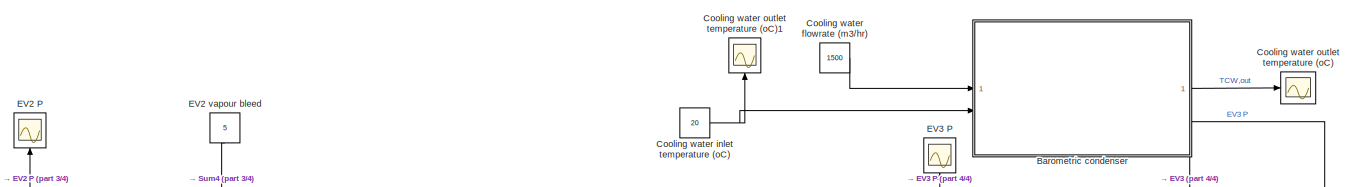
[diagram: root canvas - part 1/4, top right region]
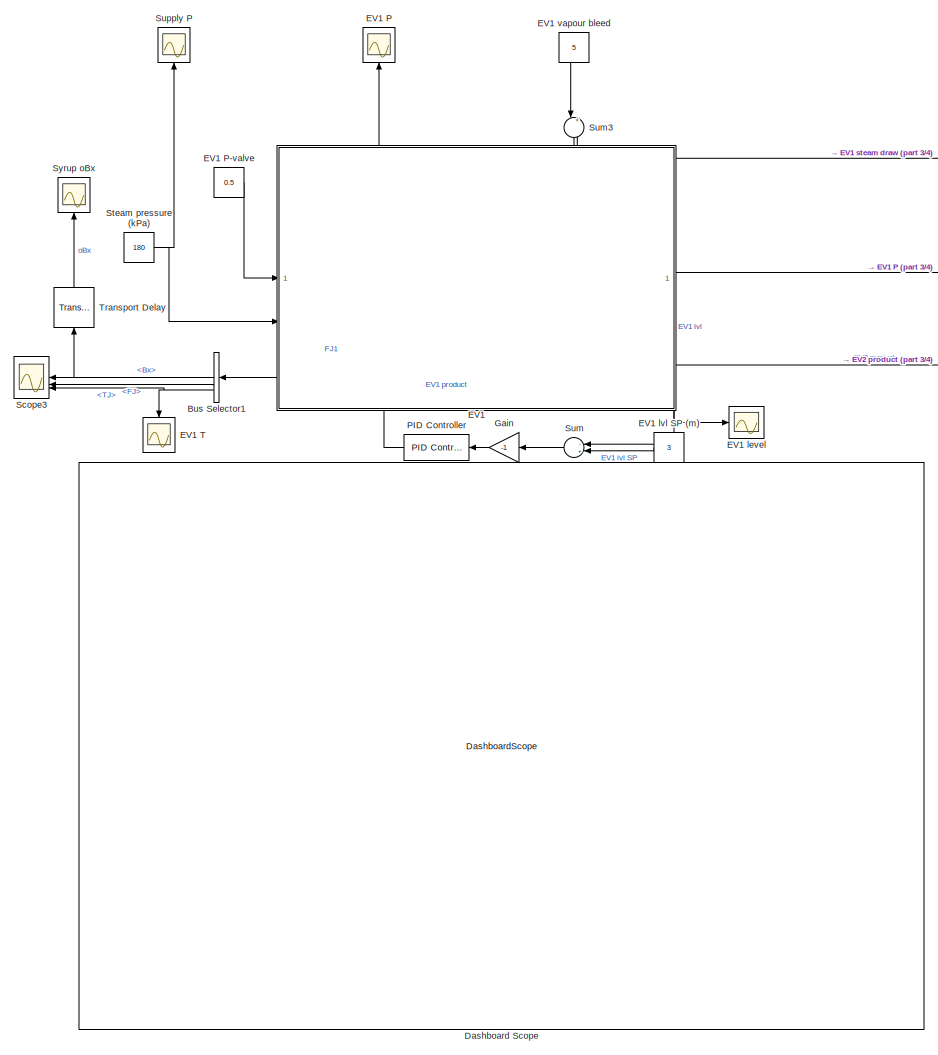
[diagram: root canvas - part 2/4, left side, full height]
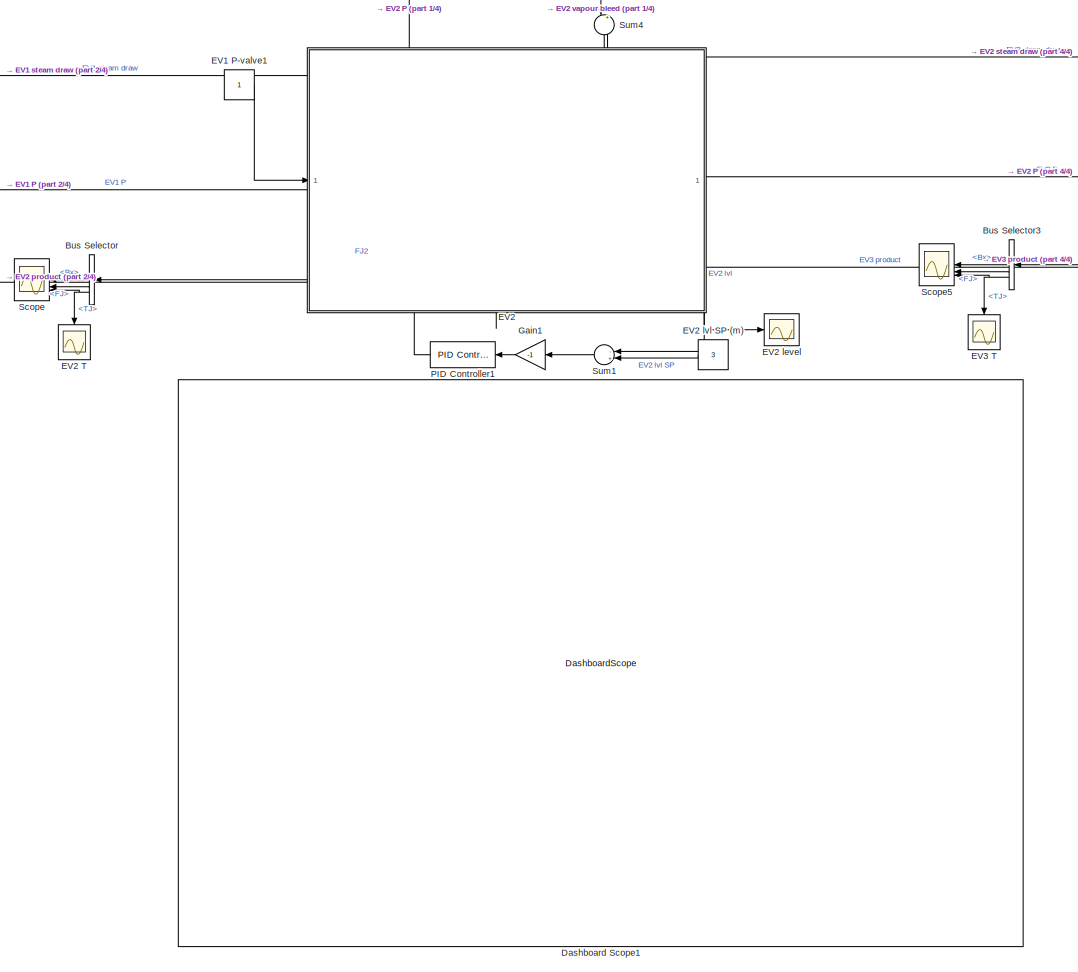
[diagram: root canvas - part 3/4, center side, full height]
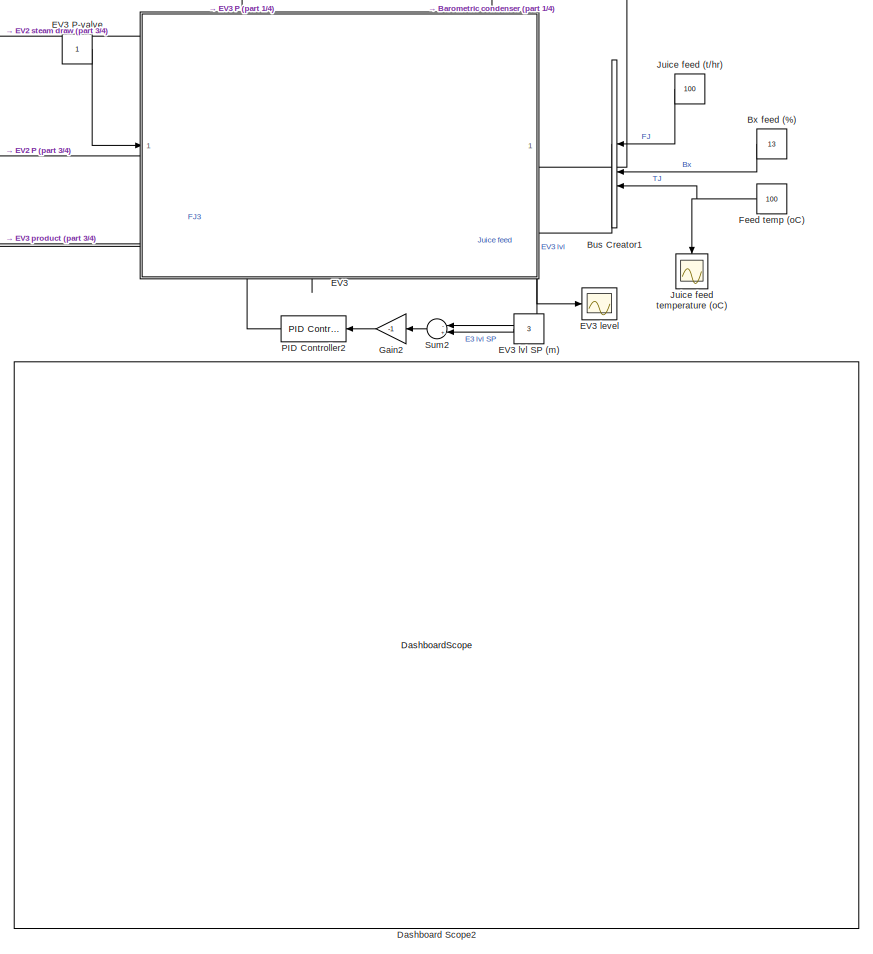
[diagram: root canvas - part 4/4, right side, full height]
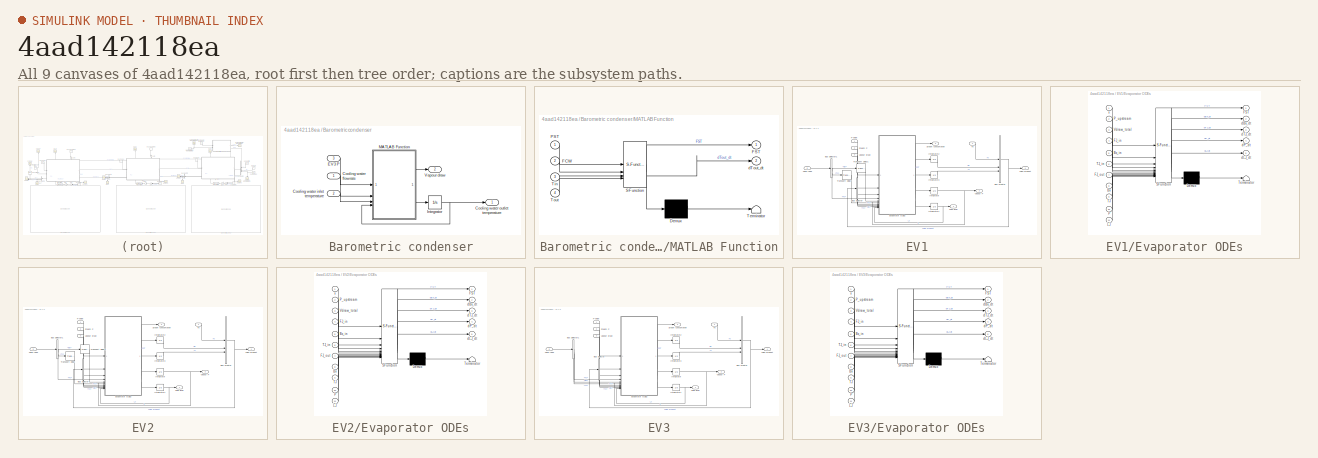
[diagram: thumbnail index - all 9 canvases of the model, root first then tree order]
MODEL slx_4aad142118ea
KIND model
CONFIG AbsTol = auto
CONFIG EnableMultiTasking = off
CONFIG FixedStep = auto
CONFIG MaxStep = 0.05
CONFIG MinStep = auto
CONFIG RelTol = 1e-3
CONFIG SampleTimeConstraint = Unconstrained
CONFIG SolverName = VariableStepAuto
CONFIG StartTime = 0.0
CONFIG StopTime = 50
BLOCK [SubSystem] Barometric condenser
  PortSchema = {"entries":[{"content":{"sides":[{"content":{"connectorIds":["In1","In2"]},"type":"ConnectorPlacement.EquallySpacedRectSide","uuid":"e5056713-d8d2-44cb-a01c-60287b02fa20"},{"content":{"connectorIds":["Out1"],"side":"RIGHT"},"type":"ConnectorPlacement.EquallySpacedRectSide","uuid":"75a49828-ba17-4d10-97f5-6b462429e837"},{"content":{"side":"TOP"},"type":"ConnectorPlacement.EquallySpacedRectSide","uu...<+384ch>
BLOCK [Inport] Barometric condenser/Cooling water flowrate
BLOCK [Inport] Barometric condenser/Cooling water inlet temperature
  Port = 2
BLOCK [Outport] Barometric condenser/Cooling water outlet temperature
BLOCK [Inport] Barometric condenser/EV3 P
  Port = 3
BLOCK [Integrator] Barometric condenser/Integrator
  InitialCondition = 27.85
BLOCK [SubSystem] Barometric condenser/MATLAB Function
  ErrorFcn = Stateflow.Translate.translate
  PermitHierarchicalResolution = ExplicitOnly
  SFBlockType = MATLAB Function
  TreatAsAtomicUnit = on
BLOCK [Demux] Barometric condenser/MATLAB Function/ Demux 
  Outputs = 1
BLOCK [S-Function] Barometric condenser/MATLAB Function/ SFunction 
  EnableBusSupport = on
  FunctionName = sf_sfun
  PortCounts = [4 3]
  SFcnIsStateOwnerBlock = off
  SFunctionDeploymentMode = off
  Tag = Stateflow S-Function 3
BLOCK [Terminator] Barometric condenser/MATLAB Function/ Terminator 
BLOCK [Inport] Barometric condenser/MATLAB Function/FCW
  Port = 2
BLOCK [Outport] Barometric condenser/MATLAB Function/FST
BLOCK [Inport] Barometric condenser/MATLAB Function/PST
BLOCK [Inport] Barometric condenser/MATLAB Function/Tin
  Port = 3
BLOCK [Inport] Barometric condenser/MATLAB Function/Tout
  Port = 4
BLOCK [Outport] Barometric condenser/MATLAB Function/dTout_dt
  Port = 2
BLOCK [Outport] Barometric condenser/Vapour draw
  Port = 2
BLOCK [BusCreator] Bus Creator1
  DisplayOption = bar
  InheritFromInputs = on
  Inputs = 3
BLOCK [BusSelector] Bus Selector
  OutputSignals = Bx,FJ,TJ
BLOCK [BusSelector] Bus Selector1
  OutputSignals = Bx,FJ,TJ
BLOCK [BusSelector] Bus Selector3
  OutputSignals = Bx,FJ,TJ
BLOCK [Constant] Bx feed (%)
  Value = 13
BLOCK [Constant] Cooling water flowrate (m3//hr)
  Value = 1500
BLOCK [Constant] Cooling water inlet temperature (oC)
  Value = 20
BLOCK [Scope] Cooling water outlet temperature (oC)
  Floating = off
  NumInputPorts = 1
  ScopeSpecificationString = Simulink.scopes.TimeScopeBlockCfg('CurrentConfiguration', extmgr.ConfigurationSet(extmgr.Configuration('Core','General UI',true,'FigureColor',[1 1 1]),extmgr.Configuration('Core','Source UI',true),extmgr.Configuration('Sources','WiredSimulink',true,'SampleTime','1/360'),extmgr.Configuration('Visuals','Time Domain',true,'SerializedDisplays',{struct('MinYLimReal','-1.00000','MaxYLimReal','1.00000','...<+1712ch>
BLOCK [Scope] Cooling water outlet temperature (oC)1
  Floating = off
  NameLocation = left
  NumInputPorts = 1
  ScopeSpecificationString = Simulink.scopes.TimeScopeBlockCfg('CurrentConfiguration', extmgr.ConfigurationSet(extmgr.Configuration('Core','General UI',true,'FigureColor',[1 1 1]),extmgr.Configuration('Core','Source UI',true),extmgr.Configuration('Sources','WiredSimulink',true,'SampleTime','1/360','DataLoggingVariableName','ScopeData10'),extmgr.Configuration('Visuals','Time Domain',true,'SerializedDisplays',{struct('MinYLimRe...<+1752ch>
BLOCK [DashboardScope] Dashboard Scope
BLOCK [DashboardScope] Dashboard Scope1
BLOCK [DashboardScope] Dashboard Scope2
BLOCK [SubSystem] EV1
  PortSchema = {"entries":[{"content":{"sides":[{"content":{"connectorIds":["In1","In2","Out3","Out4"]},"type":"ConnectorPlacement.EquallySpacedRectSide","uuid":"23f23739-dcb1-4c27-bdfa-9a4fab3adfb4"},{"content":{"connectorIds":["In5"],"side":"RIGHT"},"type":"ConnectorPlacement.EquallySpacedRectSide","uuid":"36d72309-34f0-453c-bd76-e3ebc7b1c9b0"},{"content":{"connectorIds":["Out2","In3"],"side":"TOP"},"type":"Co...<+427ch>  <repeated x3 — deduplicated; at blocks: EV1, EV2, EV3>
BLOCK [Scope] EV1 P
  Floating = off
  NameLocation = left
  NumInputPorts = 1
  ScopeSpecificationString = Simulink.scopes.TimeScopeBlockCfg('CurrentConfiguration', extmgr.ConfigurationSet(extmgr.Configuration('Core','General UI',true,'FigureColor',[1 1 1]),extmgr.Configuration('Core','Source UI',true),extmgr.Configuration('Sources','WiredSimulink',true,'SampleTime','1/360','DataLoggingVariableName','ScopeData5'),extmgr.Configuration('Visuals','Time Domain',true,'SerializedDisplays',{struct('MinYLimRea...<+1751ch>
BLOCK [Constant] EV1 P-valve
  Value = 0.5
BLOCK [Constant] EV1 P-valve1
BLOCK [Scope] EV1 T
  Floating = off
  NameLocation = right
  NumInputPorts = 1
  ScopeSpecificationString = Simulink.scopes.TimeScopeBlockCfg('CurrentConfiguration', extmgr.ConfigurationSet(extmgr.Configuration('Core','General UI',true,'FigureColor',[1 1 1]),extmgr.Configuration('Core','Source UI',true),extmgr.Configuration('Sources','WiredSimulink',true,'SampleTime','1/360','DataLoggingVariableName','ScopeData13'),extmgr.Configuration('Visuals','Time Domain',true,'SerializedDisplays',{struct('MinYLimRe...<+1752ch>
BLOCK [Scope] EV1 level
  Floating = off
  NumInputPorts = 1
  ScopeSpecificationString = Simulink.scopes.TimeScopeBlockCfg('CurrentConfiguration', extmgr.ConfigurationSet(extmgr.Configuration('Core','General UI',true,'FigureColor',[1 1 1]),extmgr.Configuration('Core','Source UI',true),extmgr.Configuration('Sources','WiredSimulink',true,'SampleTime','1/360','DataLoggingVariableName','ScopeData7'),extmgr.Configuration('Visuals','Time Domain',true,'SerializedDisplays',{struct('MinYLimRea...<+1751ch>
BLOCK [Constant] EV1 lvl SP (m)
  Value = 3
BLOCK [Constant] EV1 vapour bleed
  NameLocation = left
  Value = 5
BLOCK [BusCreator] EV1/Bus Creator
  DisplayOption = bar
  InheritFromInputs = on
  Inputs = 3
BLOCK [BusSelector] EV1/Bus Selector
  OutputSignals = FJ,Bx,TJ
BLOCK [BusSelector] EV1/Bus Selector1
  OutputSignals = FJ,Bx,TJ
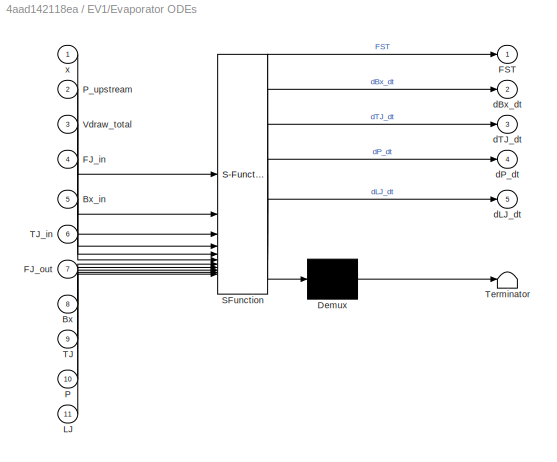
BLOCK [SubSystem] EV1/Evaporator ODEs
  ErrorFcn = Stateflow.Translate.translate
  PermitHierarchicalResolution = ExplicitOnly
  SFBlockType = MATLAB Function
  TreatAsAtomicUnit = on
BLOCK [Demux] EV1/Evaporator ODEs/ Demux 
  Outputs = 1
BLOCK [S-Function] EV1/Evaporator ODEs/ SFunction 
  EnableBusSupport = on
  FunctionName = sf_sfun
  PortCounts = [11 6]
  SFcnIsStateOwnerBlock = off
  SFunctionDeploymentMode = off
  Tag = Stateflow S-Function 7
BLOCK [Terminator] EV1/Evaporator ODEs/ Terminator 
BLOCK [Inport] EV1/Evaporator ODEs/Bx
  Port = 8
BLOCK [Inport] EV1/Evaporator ODEs/Bx_in
  Port = 5
BLOCK [Inport] EV1/Evaporator ODEs/FJ_in
  Port = 4
BLOCK [Inport] EV1/Evaporator ODEs/FJ_out
  Port = 7
BLOCK [Outport] EV1/Evaporator ODEs/FST
BLOCK [Inport] EV1/Evaporator ODEs/LJ
  Port = 11
BLOCK [Inport] EV1/Evaporator ODEs/P
  Port = 10
BLOCK [Inport] EV1/Evaporator ODEs/P_upstream
  Port = 2
BLOCK [Inport] EV1/Evaporator ODEs/TJ
  Port = 9
BLOCK [Inport] EV1/Evaporator ODEs/TJ_in
  Port = 6
BLOCK [Inport] EV1/Evaporator ODEs/Vdraw_total
  Port = 3
BLOCK [Outport] EV1/Evaporator ODEs/dBx_dt
  Port = 2
BLOCK [Outport] EV1/Evaporator ODEs/dLJ_dt
  Port = 5
BLOCK [Outport] EV1/Evaporator ODEs/dP_dt
  Port = 4
BLOCK [Outport] EV1/Evaporator ODEs/dTJ_dt
  Port = 3
BLOCK [Inport] EV1/Evaporator ODEs/x
BLOCK [Inport] EV1/FJ
  Port = 4
BLOCK [Integrator] EV1/Integrator
  InitialCondition = 121.925
  LimitOutput = on
  LowerSaturationLimit = 0
BLOCK [Integrator] EV1/Integrator1
  InitialCondition = 3
  LimitOutput = on
  LowerSaturationLimit = 0
BLOCK [Integrator] EV1/Integrator2
  InitialCondition = 61.3
  LowerSaturationLimit = 0
  UpperSaturationLimit = 100
BLOCK [Integrator] EV1/Integrator3
  InitialCondition = 105.65
BLOCK [Inport] EV1/Juice feed
  Port = 5
BLOCK [Outport] EV1/Juice level
BLOCK [Outport] EV1/Juice product
  Port = 4
BLOCK [Inport] EV1/P valve
BLOCK [Inport] EV1/Steam P
  Port = 2
BLOCK [Outport] EV1/Steam consumption
  Port = 3
BLOCK [TransportDelay] EV1/Transport Delay
  DelayTime = 3/60
  InitialOutput = 100.15
BLOCK [TransportDelay] EV1/Transport Delay1
  DelayTime = 3/60
  InitialOutput = 24.9
BLOCK [Outport] EV1/Vapour P
  Port = 2
BLOCK [Inport] EV1/Vapour draw
  Port = 3
BLOCK [SubSystem] EV2
BLOCK [Scope] EV2 P
  Floating = off
  NameLocation = left
  NumInputPorts = 1
  ScopeSpecificationString = Simulink.scopes.TimeScopeBlockCfg('CurrentConfiguration', extmgr.ConfigurationSet(extmgr.Configuration('Core','General UI',true,'FigureColor',[1 1 1]),extmgr.Configuration('Core','Source UI',true),extmgr.Configuration('Sources','WiredSimulink',true,'SampleTime','1/360','DataLoggingVariableName','ScopeData3'),extmgr.Configuration('Visuals','Time Domain',true,'SerializedDisplays',{struct('MinYLimRea...<+1751ch>
BLOCK [Scope] EV2 T
  Floating = off
  NameLocation = right
  NumInputPorts = 1
  ScopeSpecificationString = Simulink.scopes.TimeScopeBlockCfg('CurrentConfiguration', extmgr.ConfigurationSet(extmgr.Configuration('Core','General UI',true,'FigureColor',[1 1 1]),extmgr.Configuration('Core','Source UI',true),extmgr.Configuration('Sources','WiredSimulink',true,'SampleTime','1/360','DataLoggingVariableName','ScopeData14'),extmgr.Configuration('Visuals','Time Domain',true,'SerializedDisplays',{struct('MinYLimRe...<+1752ch>
BLOCK [Scope] EV2 level
  Floating = off
  NumInputPorts = 1
  ScopeSpecificationString = Simulink.scopes.TimeScopeBlockCfg('CurrentConfiguration', extmgr.ConfigurationSet(extmgr.Configuration('Core','General UI',true,'FigureColor',[1 1 1]),extmgr.Configuration('Core','Source UI',true),extmgr.Configuration('Sources','WiredSimulink',true,'SampleTime','1/360','DataLoggingVariableName','ScopeData8'),extmgr.Configuration('Visuals','Time Domain',true,'SerializedDisplays',{struct('MinYLimRea...<+1751ch>
BLOCK [Constant] EV2 lvl SP (m)
  Value = 3
BLOCK [Constant] EV2 vapour bleed
  NameLocation = left
  Value = 5
BLOCK [BusCreator] EV2/Bus Creator
  DisplayOption = bar
  InheritFromInputs = on
  Inputs = 3
BLOCK [BusSelector] EV2/Bus Selector
  OutputSignals = FJ,Bx,TJ
BLOCK [BusSelector] EV2/Bus Selector1
  OutputSignals = FJ,Bx,TJ
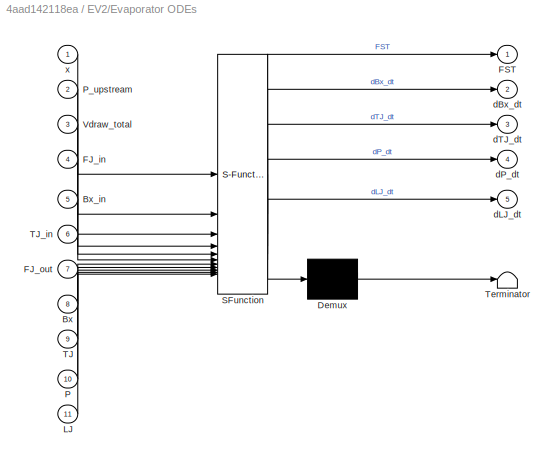
BLOCK [SubSystem] EV2/Evaporator ODEs
  ErrorFcn = Stateflow.Translate.translate
  PermitHierarchicalResolution = ExplicitOnly
  SFBlockType = MATLAB Function
  TreatAsAtomicUnit = on
BLOCK [Demux] EV2/Evaporator ODEs/ Demux 
  Outputs = 1
BLOCK [S-Function] EV2/Evaporator ODEs/ SFunction 
  EnableBusSupport = on
  FunctionName = sf_sfun
  PortCounts = [11 6]
  SFcnIsStateOwnerBlock = off
  SFunctionDeploymentMode = off
  Tag = Stateflow S-Function 1
BLOCK [Terminator] EV2/Evaporator ODEs/ Terminator 
BLOCK [Inport] EV2/Evaporator ODEs/Bx
  Port = 8
BLOCK [Inport] EV2/Evaporator ODEs/Bx_in
  Port = 5
BLOCK [Inport] EV2/Evaporator ODEs/FJ_in
  Port = 4
BLOCK [Inport] EV2/Evaporator ODEs/FJ_out
  Port = 7
BLOCK [Outport] EV2/Evaporator ODEs/FST
BLOCK [Inport] EV2/Evaporator ODEs/LJ
  Port = 11
BLOCK [Inport] EV2/Evaporator ODEs/P
  Port = 10
BLOCK [Inport] EV2/Evaporator ODEs/P_upstream
  Port = 2
BLOCK [Inport] EV2/Evaporator ODEs/TJ
  Port = 9
BLOCK [Inport] EV2/Evaporator ODEs/TJ_in
  Port = 6
BLOCK [Inport] EV2/Evaporator ODEs/Vdraw_total
  Port = 3
BLOCK [Outport] EV2/Evaporator ODEs/dBx_dt
  Port = 2
BLOCK [Outport] EV2/Evaporator ODEs/dLJ_dt
  Port = 5
BLOCK [Outport] EV2/Evaporator ODEs/dP_dt
  Port = 4
BLOCK [Outport] EV2/Evaporator ODEs/dTJ_dt
  Port = 3
BLOCK [Inport] EV2/Evaporator ODEs/x
BLOCK [Inport] EV2/FJ
  Port = 4
BLOCK [Integrator] EV2/Integrator
  InitialCondition = 100.21
  LimitOutput = on
  LowerSaturationLimit = 0
BLOCK [Integrator] EV2/Integrator1
  InitialCondition = 3
  LimitOutput = on
  LowerSaturationLimit = 0
BLOCK [Integrator] EV2/Integrator2
  InitialCondition = 24.92
  LowerSaturationLimit = 0
  UpperSaturationLimit = 100
BLOCK [Integrator] EV2/Integrator3
  InitialCondition = 100.15
BLOCK [Inport] EV2/Juice feed
  Port = 5
BLOCK [Outport] EV2/Juice level
BLOCK [Outport] EV2/Juice product
  Port = 4
BLOCK [Inport] EV2/P valve
BLOCK [Inport] EV2/Steam P
  Port = 2
BLOCK [Outport] EV2/Steam consumption
  Port = 3
BLOCK [TransportDelay] EV2/Transport Delay
  DelayTime = 3/60
  InitialOutput = 95.6
BLOCK [TransportDelay] EV2/Transport Delay1
  DelayTime = 3/60
  InitialOutput = 16.6
BLOCK [Outport] EV2/Vapour P
  Port = 2
BLOCK [Inport] EV2/Vapour draw
  Port = 3
BLOCK [SubSystem] EV3
BLOCK [Scope] EV3 P
  Floating = off
  NameLocation = left
  NumInputPorts = 1
  ScopeSpecificationString = Simulink.scopes.TimeScopeBlockCfg('CurrentConfiguration', extmgr.ConfigurationSet(extmgr.Configuration('Core','General UI',true,'FigureColor',[1 1 1]),extmgr.Configuration('Core','Source UI',true),extmgr.Configuration('Sources','WiredSimulink',true,'SampleTime','1/360','DataLoggingVariableName','ScopeData2'),extmgr.Configuration('Visuals','Time Domain',true,'SerializedDisplays',{struct('MinYLimRea...<+1751ch>
BLOCK [Constant] EV3 P-valve
BLOCK [Scope] EV3 T
  Floating = off
  NameLocation = right
  NumInputPorts = 1
  ScopeSpecificationString = Simulink.scopes.TimeScopeBlockCfg('CurrentConfiguration', extmgr.ConfigurationSet(extmgr.Configuration('Core','General UI',true,'FigureColor',[1 1 1]),extmgr.Configuration('Core','Source UI',true),extmgr.Configuration('Sources','WiredSimulink',true,'SampleTime','1/360','DataLoggingVariableName','ScopeData15'),extmgr.Configuration('Visuals','Time Domain',true,'SerializedDisplays',{struct('MinYLimRe...<+1752ch>
BLOCK [Scope] EV3 level
  Floating = off
  NumInputPorts = 1
  ScopeSpecificationString = Simulink.scopes.TimeScopeBlockCfg('CurrentConfiguration', extmgr.ConfigurationSet(extmgr.Configuration('Core','General UI',true,'FigureColor',[1 1 1]),extmgr.Configuration('Core','Source UI',true),extmgr.Configuration('Sources','WiredSimulink',true,'SampleTime','1/360','DataLoggingVariableName','ScopeData9'),extmgr.Configuration('Visuals','Time Domain',true,'SerializedDisplays',{struct('MinYLimRea...<+1751ch>
BLOCK [Constant] EV3 lvl SP (m)
  Value = 3
BLOCK [BusCreator] EV3/Bus Creator
  DisplayOption = bar
  InheritFromInputs = on
  Inputs = 3
BLOCK [BusSelector] EV3/Bus Selector
  OutputSignals = FJ,Bx,TJ
BLOCK [BusSelector] EV3/Bus Selector1
  OutputSignals = FJ,Bx,TJ
BLOCK [SubSystem] EV3/Evaporator ODEs
  ErrorFcn = Stateflow.Translate.translate
  PermitHierarchicalResolution = ExplicitOnly
  SFBlockType = MATLAB Function
  TreatAsAtomicUnit = on
BLOCK [Demux] EV3/Evaporator ODEs/ Demux 
  Outputs = 1
BLOCK [S-Function] EV3/Evaporator ODEs/ SFunction 
  EnableBusSupport = on
  FunctionName = sf_sfun
  PortCounts = [11 6]
  SFcnIsStateOwnerBlock = off
  SFunctionDeploymentMode = off
  Tag = Stateflow S-Function 2
BLOCK [Terminator] EV3/Evaporator ODEs/ Terminator 
BLOCK [Inport] EV3/Evaporator ODEs/Bx
  Port = 8
BLOCK [Inport] EV3/Evaporator ODEs/Bx_in
  Port = 5
BLOCK [Inport] EV3/Evaporator ODEs/FJ_in
  Port = 4
BLOCK [Inport] EV3/Evaporator ODEs/FJ_out
  Port = 7
BLOCK [Outport] EV3/Evaporator ODEs/FST
BLOCK [Inport] EV3/Evaporator ODEs/LJ
  Port = 11
BLOCK [Inport] EV3/Evaporator ODEs/P
  Port = 10
BLOCK [Inport] EV3/Evaporator ODEs/P_upstream
  Port = 2
BLOCK [Inport] EV3/Evaporator ODEs/TJ
  Port = 9
BLOCK [Inport] EV3/Evaporator ODEs/TJ_in
  Port = 6
BLOCK [Inport] EV3/Evaporator ODEs/Vdraw_total
  Port = 3
BLOCK [Outport] EV3/Evaporator ODEs/dBx_dt
  Port = 2
BLOCK [Outport] EV3/Evaporator ODEs/dLJ_dt
  Port = 5
BLOCK [Outport] EV3/Evaporator ODEs/dP_dt
  Port = 4
BLOCK [Outport] EV3/Evaporator ODEs/dTJ_dt
  Port = 3
BLOCK [Inport] EV3/Evaporator ODEs/x
BLOCK [Inport] EV3/FJ
  Port = 4
BLOCK [Integrator] EV3/Integrator
  InitialCondition = 84.91
  LimitOutput = on
  LowerSaturationLimit = 0
BLOCK [Integrator] EV3/Integrator1
  InitialCondition = 3
  LimitOutput = on
  LowerSaturationLimit = 0
BLOCK [Integrator] EV3/Integrator2
  InitialCondition = 16.60
  LowerSaturationLimit = 0
  UpperSaturationLimit = 100
BLOCK [Integrator] EV3/Integrator3
  InitialCondition = 95.61
BLOCK [Inport] EV3/Juice feed
  Port = 5
BLOCK [Outport] EV3/Juice level
BLOCK [Outport] EV3/Juice product
  Port = 4
BLOCK [Inport] EV3/P valve
BLOCK [Inport] EV3/Steam P
  Port = 2
BLOCK [Outport] EV3/Steam consumption
  Port = 3
BLOCK [Outport] EV3/Vapour P
  Port = 2
BLOCK [Inport] EV3/Vapour draw
  Port = 3
BLOCK [Constant] Feed temp (oC)
  Value = 100
BLOCK [Gain] Gain
  Gain = -1
BLOCK [Gain] Gain1
  Gain = -1
BLOCK [Gain] Gain2
  Gain = -1
BLOCK [Constant] Juice feed (t//hr)
  Value = 100
BLOCK [Scope] Juice feed temperature (oC)
  Floating = off
  NameLocation = right
  NumInputPorts = 1
  ScopeSpecificationString = Simulink.scopes.TimeScopeBlockCfg('CurrentConfiguration', extmgr.ConfigurationSet(extmgr.Configuration('Core','General UI',true,'FigureColor',[1 1 1]),extmgr.Configuration('Core','Source UI',true),extmgr.Configuration('Sources','WiredSimulink',true,'SampleTime','1/360','DataLoggingVariableName','ScopeData11'),extmgr.Configuration('Visuals','Time Domain',true,'SerializedDisplays',{struct('MinYLimRe...<+1752ch>
BLOCK [Reference] PID Controller  REF=slpidlib/PID Controller
  LibrarySourceBlock = simulink/Continuous/PID Controller
  SourceBlock = slpidlib/PID Controller
  SourceType = PID 1dof
BLOCK [Reference] PID Controller1  REF=slpidlib/PID Controller
  LibrarySourceBlock = simulink/Continuous/PID Controller
  SourceBlock = slpidlib/PID Controller
  SourceType = PID 1dof
BLOCK [Reference] PID Controller2  REF=slpidlib/PID Controller
  LibrarySourceBlock = simulink/Continuous/PID Controller
  SourceBlock = slpidlib/PID Controller
  SourceType = PID 1dof
BLOCK [Scope] Scope
  Floating = off
  NumInputPorts = 3
  ScopeSpecificationString = Simulink.scopes.TimeScopeBlockCfg('CurrentConfiguration', extmgr.ConfigurationSet(extmgr.Configuration('Core','General UI',true,'FigureColor',[1 1 1]),extmgr.Configuration('Core','Source UI',true),extmgr.Configuration('Sources','WiredSimulink',true,'DataLoggingVariableName','ScopeData1'),extmgr.Configuration('Visuals','Time Domain',true,'SerializedDisplays',{struct('MinYLimReal','22.23623','MaxYLi...<+2097ch>
BLOCK [Scope] Scope3
  Floating = off
  NumInputPorts = 3
  ScopeSpecificationString = Simulink.scopes.TimeScopeBlockCfg('CurrentConfiguration', extmgr.ConfigurationSet(extmgr.Configuration('Core','General UI',true,'FigureColor',[1 1 1]),extmgr.Configuration('Core','Source UI',true),extmgr.Configuration('Sources','WiredSimulink',true,'DataLoggingVariableName','ScopeData4'),extmgr.Configuration('Visuals','Time Domain',true,'SerializedDisplays',{struct('MinYLimReal','58.59557','MaxYLi...<+2095ch>
BLOCK [Scope] Scope5
  Floating = off
  NumInputPorts = 3
  ScopeSpecificationString = Simulink.scopes.TimeScopeBlockCfg('CurrentConfiguration', extmgr.ConfigurationSet(extmgr.Configuration('Core','General UI',true,'FigureColor',[1 1 1]),extmgr.Configuration('Core','Source UI',true),extmgr.Configuration('Sources','WiredSimulink',true,'DataLoggingVariableName','ScopeData6'),extmgr.Configuration('Visuals','Time Domain',true,'SerializedDisplays',{struct('MinYLimReal','16.59686','MaxYLi...<+2096ch>
BLOCK [Constant] Steam pressure (kPa)
  Value = 180
BLOCK [Sum] Sum
  Inputs = -+|
BLOCK [Sum] Sum1
  Inputs = -+|
BLOCK [Sum] Sum2
  Inputs = -+|
BLOCK [Sum] Sum3
  Inputs = |++
  NameLocation = right
BLOCK [Sum] Sum4
  Inputs = |++
  NameLocation = right
BLOCK [Scope] Supply P
  Floating = off
  NameLocation = left
  NumInputPorts = 1
  ScopeSpecificationString = Simulink.scopes.TimeScopeBlockCfg('CurrentConfiguration', extmgr.ConfigurationSet(extmgr.Configuration('Core','General UI',true,'FigureColor',[1 1 1]),extmgr.Configuration('Core','Source UI',true),extmgr.Configuration('Sources','WiredSimulink',true,'SampleTime','1/360','DataLoggingVariableName','ScopeData16'),extmgr.Configuration('Visuals','Time Domain',true,'SerializedDisplays',{struct('MinYLimRe...<+1752ch>
BLOCK [Scope] Syrup oBx
  Floating = off
  NameLocation = left
  NumInputPorts = 1
  ScopeSpecificationString = Simulink.scopes.TimeScopeBlockCfg('CurrentConfiguration', extmgr.ConfigurationSet(extmgr.Configuration('Core','General UI',true,'FigureColor',[1 1 1]),extmgr.Configuration('Core','Source UI',true),extmgr.Configuration('Sources','WiredSimulink',true,'SampleTime','1/360','DataLoggingVariableName','ScopeData12'),extmgr.Configuration('Visuals','Time Domain',true,'SerializedDisplays',{struct('MinYLimRe...<+1752ch>
BLOCK [TransportDelay] Transport Delay
  DelayTime = 1/60
  NameLocation = right
LINE Barometric condenser/Cooling water flowrate:1 -> Barometric condenser/MATLAB Function:2
LINE Barometric condenser/Cooling water inlet temperature:1 -> Barometric condenser/MATLAB Function:3
LINE Barometric condenser/EV3 P:1 -> Barometric condenser/MATLAB Function:1
NET Barometric condenser/Integrator:1 -> Barometric condenser/Cooling water outlet temperature:1, Barometric condenser/MATLAB Function:4
LINE Barometric condenser/MATLAB Function:1 -> Barometric condenser/Vapour draw:1
LINE Barometric condenser/MATLAB Function:2 -> Barometric condenser/Integrator:1
LINE Barometric condenser:1 -> Cooling water outlet temperature (oC):1
LINE Barometric condenser:2 -> EV3:3
LINE Bus Creator1:1 -> EV3:5
NET Bus Selector1:1 -> Scope3:1, Transport Delay:1
LINE Bus Selector1:2 -> Scope3:2
NET Bus Selector1:3 -> EV1 T:1, Scope3:3
LINE Bus Selector3:1 -> Scope5:1
LINE Bus Selector3:2 -> Scope5:2
NET Bus Selector3:3 -> EV3 T:1, Scope5:3
LINE Bus Selector:1 -> Scope:1
LINE Bus Selector:2 -> Scope:2
NET Bus Selector:3 -> EV2 T:1, Scope:3
LINE Bx feed (%):1 -> Bus Creator1:2
LINE Cooling water flowrate (m3//hr):1 -> Barometric condenser:1
NET Cooling water inlet temperature (oC):1 -> Barometric condenser:2, Cooling water outlet temperature (oC)1:1
LINE EV1 P-valve1:1 -> EV2:1
LINE EV1 P-valve:1 -> EV1:1
LINE EV1 lvl SP (m):1 -> Sum:2
LINE EV1 vapour bleed:1 -> Sum3:1
NET EV1/Bus Creator:1 -> EV1/Bus Selector:1, EV1/Juice product:1
LINE EV1/Bus Selector1:1 -> EV1/Evaporator ODEs:4
LINE EV1/Bus Selector1:2 -> EV1/Transport Delay1:1
LINE EV1/Bus Selector1:3 -> EV1/Transport Delay:1
LINE EV1/Bus Selector:1 -> EV1/Evaporator ODEs:7
LINE EV1/Bus Selector:2 -> EV1/Evaporator ODEs:8
LINE EV1/Bus Selector:3 -> EV1/Evaporator ODEs:9
LINE EV1/Evaporator ODEs:1 -> EV1/Steam consumption:1
LINE EV1/Evaporator ODEs:2 -> EV1/Integrator2:1
LINE EV1/Evaporator ODEs:3 -> EV1/Integrator3:1
LINE EV1/Evaporator ODEs:4 -> EV1/Integrator:1
LINE EV1/Evaporator ODEs:5 -> EV1/Integrator1:1
LINE EV1/FJ:1 -> EV1/Bus Creator:1
NET EV1/Integrator1:1 -> EV1/Evaporator ODEs:11, EV1/Juice level:1
LINE EV1/Integrator2:1 -> EV1/Bus Creator:2
LINE EV1/Integrator3:1 -> EV1/Bus Creator:3
NET EV1/Integrator:1 -> EV1/Evaporator ODEs:10, EV1/Vapour P:1
LINE EV1/Juice feed:1 -> EV1/Bus Selector1:1
LINE EV1/P valve:1 -> EV1/Evaporator ODEs:1
LINE EV1/Steam P:1 -> EV1/Evaporator ODEs:2
LINE EV1/Transport Delay1:1 -> EV1/Evaporator ODEs:5
LINE EV1/Transport Delay:1 -> EV1/Evaporator ODEs:6
LINE EV1/Vapour draw:1 -> EV1/Evaporator ODEs:3
NET EV1:1 -> EV1 level:1, Sum:1
NET EV1:2 -> EV1 P:1, EV2:2
LINE EV1:4 -> Bus Selector1:1
LINE EV2 lvl SP (m):1 -> Sum1:2
LINE EV2 vapour bleed:1 -> Sum4:1
NET EV2/Bus Creator:1 -> EV2/Bus Selector:1, EV2/Juice product:1
LINE EV2/Bus Selector1:1 -> EV2/Evaporator ODEs:4
LINE EV2/Bus Selector1:2 -> EV2/Transport Delay1:1
LINE EV2/Bus Selector1:3 -> EV2/Transport Delay:1
LINE EV2/Bus Selector:1 -> EV2/Evaporator ODEs:7
LINE EV2/Bus Selector:2 -> EV2/Evaporator ODEs:8
LINE EV2/Bus Selector:3 -> EV2/Evaporator ODEs:9
LINE EV2/Evaporator ODEs:1 -> EV2/Steam consumption:1
LINE EV2/Evaporator ODEs:2 -> EV2/Integrator2:1
LINE EV2/Evaporator ODEs:3 -> EV2/Integrator3:1
LINE EV2/Evaporator ODEs:4 -> EV2/Integrator:1
LINE EV2/Evaporator ODEs:5 -> EV2/Integrator1:1
LINE EV2/FJ:1 -> EV2/Bus Creator:1
NET EV2/Integrator1:1 -> EV2/Evaporator ODEs:11, EV2/Juice level:1
LINE EV2/Integrator2:1 -> EV2/Bus Creator:2
LINE EV2/Integrator3:1 -> EV2/Bus Creator:3
NET EV2/Integrator:1 -> EV2/Evaporator ODEs:10, EV2/Vapour P:1
LINE EV2/Juice feed:1 -> EV2/Bus Selector1:1
LINE EV2/P valve:1 -> EV2/Evaporator ODEs:1
LINE EV2/Steam P:1 -> EV2/Evaporator ODEs:2
LINE EV2/Transport Delay1:1 -> EV2/Evaporator ODEs:5
LINE EV2/Transport Delay:1 -> EV2/Evaporator ODEs:6
LINE EV2/Vapour draw:1 -> EV2/Evaporator ODEs:3
NET EV2:1 -> EV2 level:1, Sum1:1
NET EV2:2 -> EV2 P:1, EV3:2
LINE EV2:3 -> Sum3:2
NET EV2:4 -> Bus Selector:1, EV1:5
LINE EV3 P-valve:1 -> EV3:1
LINE EV3 lvl SP (m):1 -> Sum2:2
NET EV3/Bus Creator:1 -> EV3/Bus Selector:1, EV3/Juice product:1
LINE EV3/Bus Selector1:1 -> EV3/Evaporator ODEs:4
LINE EV3/Bus Selector1:2 -> EV3/Evaporator ODEs:5
LINE EV3/Bus Selector1:3 -> EV3/Evaporator ODEs:6
LINE EV3/Bus Selector:1 -> EV3/Evaporator ODEs:7
LINE EV3/Bus Selector:2 -> EV3/Evaporator ODEs:8
LINE EV3/Bus Selector:3 -> EV3/Evaporator ODEs:9
LINE EV3/Evaporator ODEs:1 -> EV3/Steam consumption:1
LINE EV3/Evaporator ODEs:2 -> EV3/Integrator2:1
LINE EV3/Evaporator ODEs:3 -> EV3/Integrator3:1
LINE EV3/Evaporator ODEs:4 -> EV3/Integrator:1
LINE EV3/Evaporator ODEs:5 -> EV3/Integrator1:1
LINE EV3/FJ:1 -> EV3/Bus Creator:1
NET EV3/Integrator1:1 -> EV3/Evaporator ODEs:11, EV3/Juice level:1
LINE EV3/Integrator2:1 -> EV3/Bus Creator:2
LINE EV3/Integrator3:1 -> EV3/Bus Creator:3
NET EV3/Integrator:1 -> EV3/Evaporator ODEs:10, EV3/Vapour P:1
LINE EV3/Juice feed:1 -> EV3/Bus Selector1:1
LINE EV3/P valve:1 -> EV3/Evaporator ODEs:1
LINE EV3/Steam P:1 -> EV3/Evaporator ODEs:2
LINE EV3/Vapour draw:1 -> EV3/Evaporator ODEs:3
NET EV3:1 -> EV3 level:1, Sum2:1
NET EV3:2 -> Barometric condenser:3, EV3 P:1
LINE EV3:3 -> Sum4:2
NET EV3:4 -> Bus Selector3:1, EV2:5
NET Feed temp (oC):1 -> Bus Creator1:3, Juice feed temperature (oC):1
LINE Gain1:1 -> PID Controller1:1
LINE Gain2:1 -> PID Controller2:1
LINE Gain:1 -> PID Controller:1
LINE Juice feed (t//hr):1 -> Bus Creator1:1
LINE PID Controller1:1 -> EV2:4
LINE PID Controller2:1 -> EV3:4
LINE PID Controller:1 -> EV1:4
NET Steam pressure (kPa):1 -> EV1:2, Supply P:1
LINE Sum1:1 -> Gain1:1
LINE Sum2:1 -> Gain2:1
LINE Sum3:1 -> EV1:3
LINE Sum4:1 -> EV2:3
LINE Sum:1 -> Gain:1
LINE Transport Delay:1 -> Syrup oBx:1
note: NET lines group one-source signal fan-out (src -> all destinations, sorted); 1:1 wires keep LINE
CHART EV2/Evaporator ODEs states=1 transitions=1
  STATE_LABEL 'eML_blk_kernel()'
  STATE_LABEL 'SCRIPT:\nfunction [FST, dBx_dt, dTJ_dt, dP_dt, dLJ_dt] = ODEs(x, P_upstream,Vdraw_total, FJ_in, Bx_in, TJ_in, FJ_out, Bx, TJ, P, LJ)\n[FST, dBx_dt, dTJ_dt, dP_dt, dLJ_dt] = MultiEffectEvaporator_ODEs(x, P_upstream,Vdraw_total, FJ_in, Bx_in, TJ_in, FJ_out, Bx, TJ, P, LJ);'  <repeated x3 — deduplicated; at blocks: Evaporator ODEs>
CHART EV3/Evaporator ODEs states=1 transitions=1
  STATE_LABEL 'eML_blk_kernel()'
CHART Barometric condenser/MATLAB Function states=1 transitions=1
  STATE_LABEL 'eML_blk_kernel()'
  STATE_LABEL 'SCRIPT:\nfunction [FST, dTout_dt] = Condenser(PST, FCW, Tin, Tout)\n% Barometric condenser\n% Inputs\n%   PST (kPa):  pressure of steam entering the condenser\n%   LCW (t/hr): cooling water flowrate\n%   Tin (oC):   cooling water inlet temperature\n%   Tout (oC):   cooling water outlet temperature\n\n%% Parameters\nU = 2500 *1e-6*3600; % (J/s.m2.oC) * (MJ/J) * (s/hr) = (MJ/hr.m2.oC): overall heat transfer c...<+1174ch>'
CHART EV1/Evaporator ODEs states=1 transitions=1
  STATE_LABEL 'eML_blk_kernel()'
CHART  states=0 transitions=0
CHART  states=0 transitions=0
CHART  states=0 transitions=0
CHART  states=0 transitions=0
